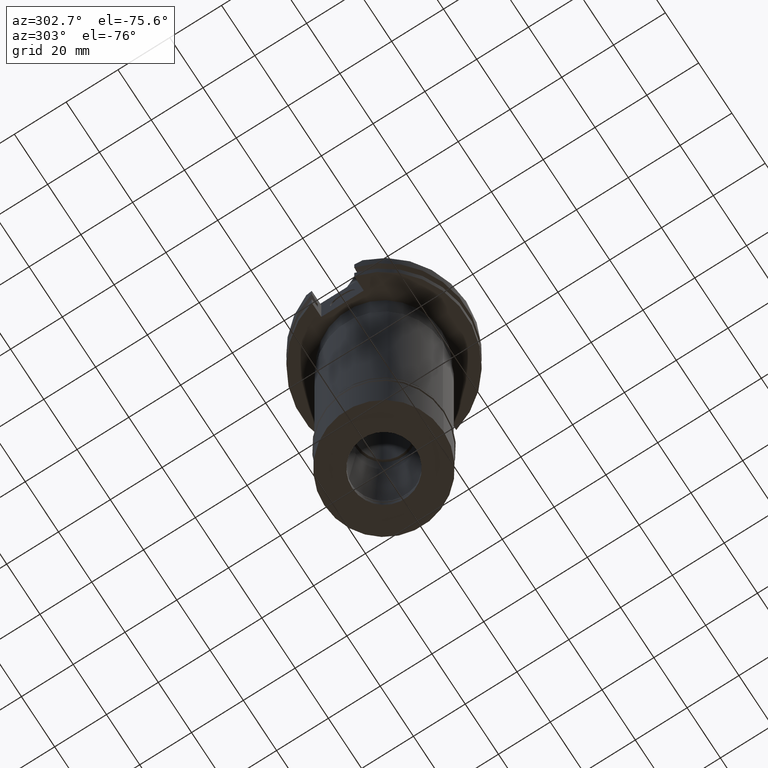
[diagram: clean part render]
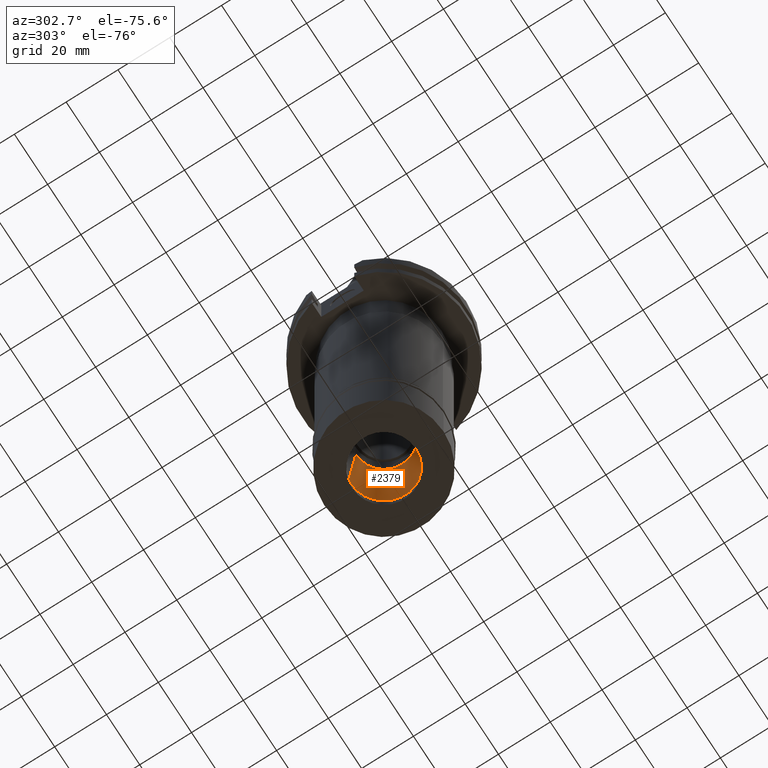
[diagram: same view with one face highlighted and labeled with its STEP entity id]
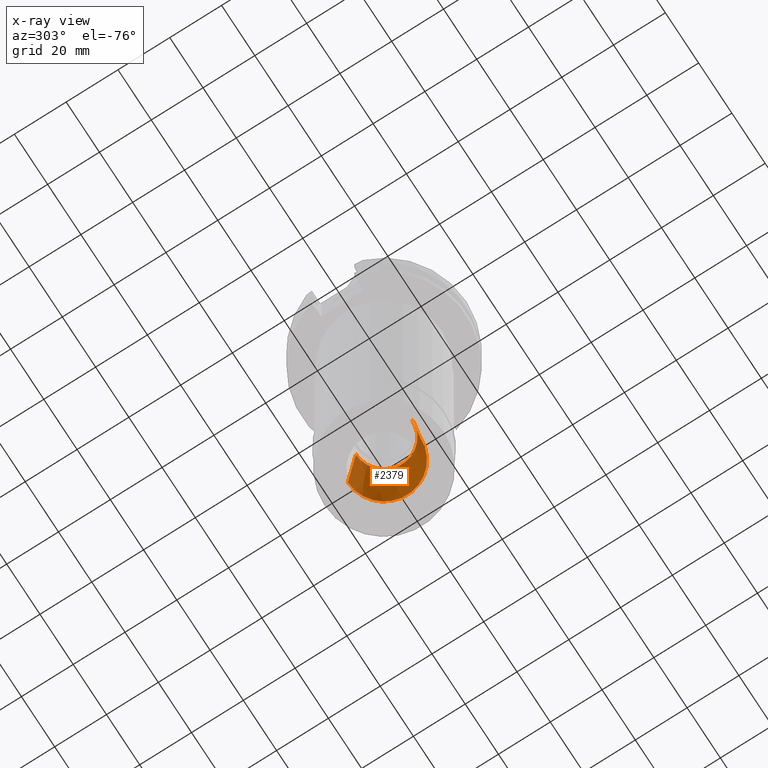
[diagram: x-ray of the same camera — body ghosted, the highlighted face saturated]
A machine part, auxiliary view. The second image highlights one B-rep face of the part: STEP entity #2379.
The next image is the same camera in x-ray: the body ghosted, the highlighted face saturated — about 3% of this face is hidden behind the body in this view.
In plain terms, the highlighted conical surface has half-angle 6 deg.
Its self-contained STEP definition (entity closure, byte-faithful):
#85 = LINE ( 'NONE', #1863, #1506 ) ;
#113 = CIRCLE ( 'NONE', #1831, 14.00000000000000000 ) ;
#186 = VERTEX_POINT ( 'NONE', #1157 ) ;
#396 = EDGE_CURVE ( 'NONE', #672, #186, #113, .T. ) ;
#416 = AXIS2_PLACEMENT_3D ( 'NONE', #1725, #1929, #2909 ) ;
#448 = EDGE_LOOP ( 'NONE', ( #2170, #1841, #2731, #1082 ) ) ;
#455 = EDGE_CURVE ( 'NONE', #186, #2069, #1252, .T. ) ;
#626 = EDGE_CURVE ( 'NONE', #672, #2773, #85, .T. ) ;
#672 = VERTEX_POINT ( 'NONE', #2159 ) ;
#733 = VECTOR ( 'NONE', #753, 1000.000000000000227 ) ;
#753 = DIRECTION ( 'NONE',  ( 0.0000000000000000000, 0.1045284632676965891, 0.9945218953682687379 ) ) ;
#885 = AXIS2_PLACEMENT_3D ( 'NONE', #2455, #2406, #1173 ) ;
#1004 = CARTESIAN_POINT ( 'NONE',  ( 0.0000000000000000000, -14.00000000000000000, -141.4000000000000057 ) ) ;
#1033 = CARTESIAN_POINT ( 'NONE',  ( 0.0000000000000000000, -10.84687294202000096, -111.4000000000000057 ) ) ;
#1051 = DIRECTION ( 'NONE',  ( 0.0000000000000000000, -0.1045284632676965891, 0.9945218953682687379 ) ) ;
#1082 = ORIENTED_EDGE ( 'NONE', *, *, #626, .F. ) ;
#1157 = CARTESIAN_POINT ( 'NONE',  ( 0.0000000000000000000, -14.00000000000000000, -141.4000000000000057 ) ) ;
#1173 = DIRECTION ( 'NONE',  ( 0.0000000000000000000, -1.000000000000000000, 0.0000000000000000000 ) ) ;
#1252 = LINE ( 'NONE', #1004, #733 ) ;
#1356 = CONICAL_SURFACE ( 'NONE', #885, 12.42343647100999959, 0.1047197551196402399 ) ;
#1380 = CARTESIAN_POINT ( 'NONE',  ( 0.0000000000000000000, 10.84687294202000096, -111.4000000000000057 ) ) ;
#1506 = VECTOR ( 'NONE', #1051, 1000.000000000000227 ) ;
#1524 = DIRECTION ( 'NONE',  ( 0.0000000000000000000, 1.000000000000000000, 0.0000000000000000000 ) ) ;
#1704 = FACE_OUTER_BOUND ( 'NONE', #448, .T. ) ;
#1725 = CARTESIAN_POINT ( 'NONE',  ( 0.0000000000000000000, 0.0000000000000000000, -111.4000000000000057 ) ) ;
#1815 = EDGE_CURVE ( 'NONE', #2069, #2773, #2852, .T. ) ;
#1831 = AXIS2_PLACEMENT_3D ( 'NONE', #2528, #1997, #1524 ) ;
#1841 = ORIENTED_EDGE ( 'NONE', *, *, #455, .T. ) ;
#1863 = CARTESIAN_POINT ( 'NONE',  ( 0.0000000000000000000, 14.00000000000000000, -141.4000000000000057 ) ) ;
#1929 = DIRECTION ( 'NONE',  ( 0.0000000000000000000, 0.0000000000000000000, 1.000000000000000000 ) ) ;
#1997 = DIRECTION ( 'NONE',  ( 0.0000000000000000000, 0.0000000000000000000, -1.000000000000000000 ) ) ;
#2069 = VERTEX_POINT ( 'NONE', #1033 ) ;
#2159 = CARTESIAN_POINT ( 'NONE',  ( 0.0000000000000000000, 14.00000000000000000, -141.4000000000000057 ) ) ;
#2170 = ORIENTED_EDGE ( 'NONE', *, *, #396, .T. ) ;
#2379 = ADVANCED_FACE ( 'NONE', ( #1704 ), #1356, .F. ) ;
#2406 = DIRECTION ( 'NONE',  ( 0.0000000000000000000, 0.0000000000000000000, -1.000000000000000000 ) ) ;
#2455 = CARTESIAN_POINT ( 'NONE',  ( 0.0000000000000000000, 0.0000000000000000000, -126.4000000000000057 ) ) ;
#2528 = CARTESIAN_POINT ( 'NONE',  ( 0.0000000000000000000, 0.0000000000000000000, -141.4000000000000057 ) ) ;
#2731 = ORIENTED_EDGE ( 'NONE', *, *, #1815, .T. ) ;
#2773 = VERTEX_POINT ( 'NONE', #1380 ) ;
#2852 = CIRCLE ( 'NONE', #416, 10.84687294202000096 ) ;
#2909 = DIRECTION ( 'NONE',  ( 0.0000000000000000000, -1.000000000000000000, 0.0000000000000000000 ) ) ;